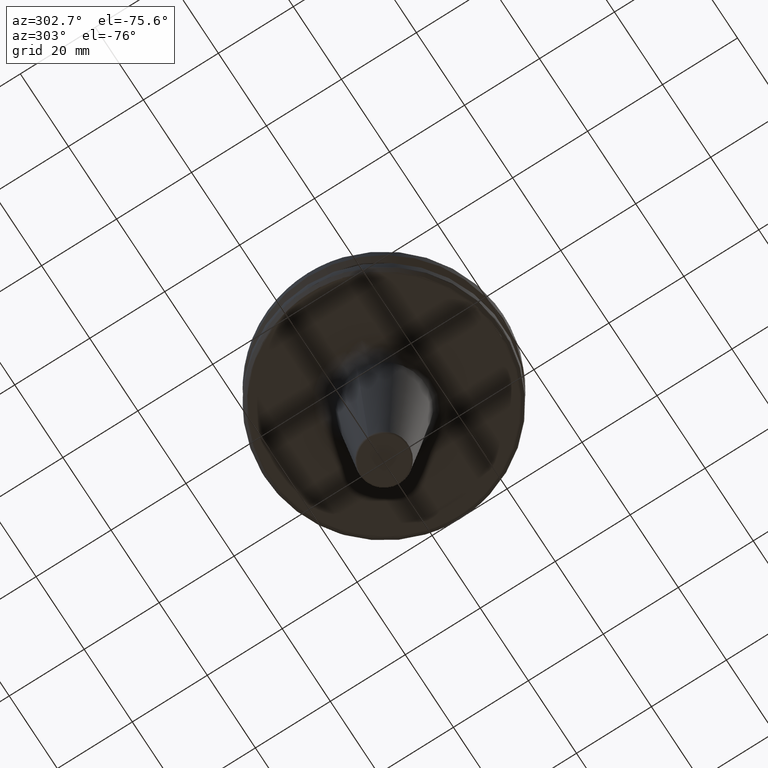
[diagram: clean part render]
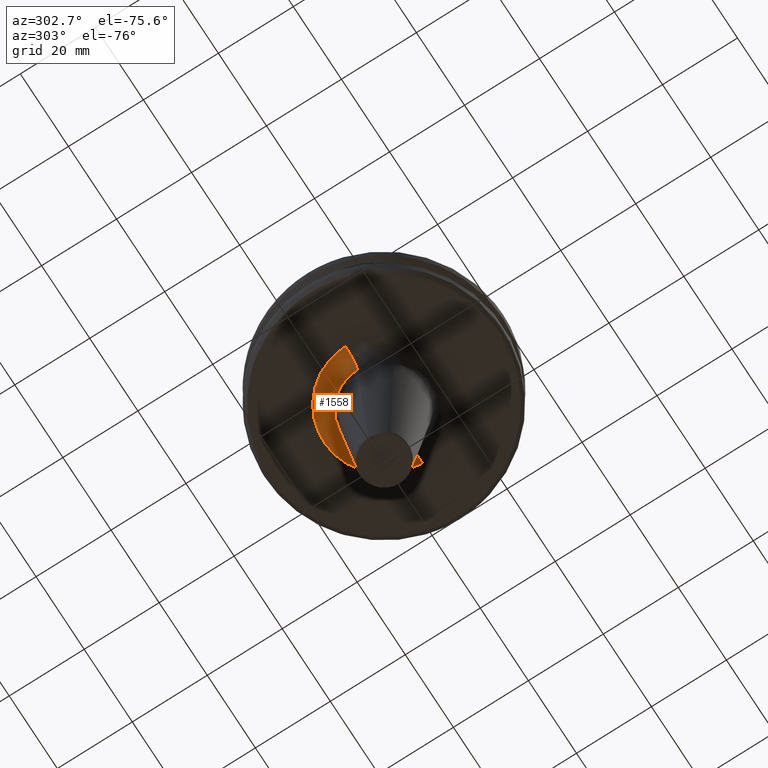
[diagram: same view with one face highlighted and labeled with its STEP entity id]
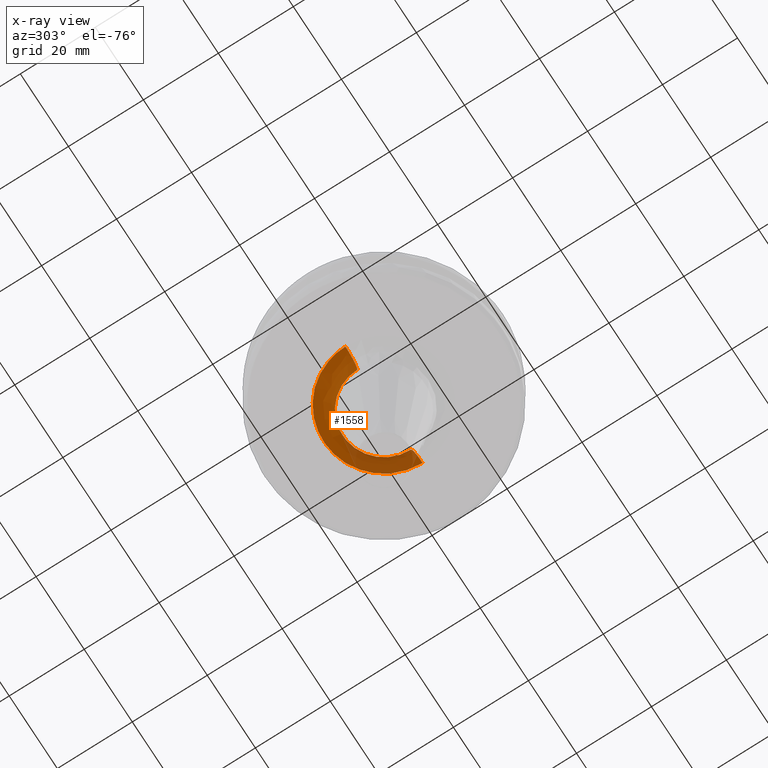
[diagram: x-ray of the same camera — body ghosted, the highlighted face saturated]
A machine part, auxiliary view. The second image highlights one B-rep face of the part: STEP entity #1558.
The next image is the same camera in x-ray: the body ghosted, the highlighted face saturated — about 30% of this face is hidden behind the body in this view.
In plain terms, the highlighted face is a freeform B-spline surface patch.
Its self-contained STEP definition (entity closure, byte-faithful):
#30 = CARTESIAN_POINT ( 'NONE',  ( -14.84947300012846800, 6.024364405954415200, -19.10000000000000500 ) ) ;
#44 = CARTESIAN_POINT ( 'NONE',  ( -13.37576967291299800, 8.825640178401208400, -19.10000000000000500 ) ) ;
#70 = CARTESIAN_POINT ( 'NONE',  ( -14.81123150433130900, 6.118357356655534900, -19.10000000000001200 ) ) ;
#86 = CARTESIAN_POINT ( 'NONE',  ( -14.88784638462720400, 5.928885450392087400, -19.10000000000000900 ) ) ;
#105 = AXIS2_PLACEMENT_3D ( 'NONE', #1554, #1251, #1521 ) ;
#141 = CARTESIAN_POINT ( 'NONE',  ( 0.0000000000000000000, 0.0000000000000000000, -23.60248140489502000 ) ) ;
#172 = CARTESIAN_POINT ( 'NONE',  ( -14.87477819932297900, 5.961603683802923800, -19.10000000000000900 ) ) ;
#183 = CIRCLE ( 'NONE', #1462, 5.000000000000004400 ) ;
#187 = CARTESIAN_POINT ( 'NONE',  ( -15.34169353380840100, 4.680513904855772000, -19.10000000000000100 ) ) ;
#193 = CARTESIAN_POINT ( 'NONE',  ( -12.86360331655530800, 9.563684186069849600, -19.10000000000000500 ) ) ;
#198 = CARTESIAN_POINT ( 'NONE',  ( 16.02493781056044500, 0.0000000000000000000, -19.10000000000000500 ) ) ;
#215 = CARTESIAN_POINT ( 'NONE',  ( -15.09105277167043900, 5.415644888857079800, -19.10000000000000500 ) ) ;
#229 = CARTESIAN_POINT ( 'NONE',  ( -15.66933341055752200, 3.361706707456753900, -19.10000000000000900 ) ) ;
#237 = CARTESIAN_POINT ( 'NONE',  ( -15.57068978087852100, 3.804387961389443800, -19.10000000000000900 ) ) ;
#245 = CARTESIAN_POINT ( 'NONE',  ( -15.73328147892308400, 3.043609017315738200, -19.10000000000000500 ) ) ;
#255 = CARTESIAN_POINT ( 'NONE',  ( 11.04975185951035900, 22.09950371902071000, -23.60248140489638400 ) ) ;
#272 = CARTESIAN_POINT ( 'NONE',  ( -15.71469160193302100, 3.139211509940523100, -19.10000000000001200 ) ) ;
#282 = AXIS2_PLACEMENT_3D ( 'NONE', #141, #522, #1146 ) ;
#286 = CARTESIAN_POINT ( 'NONE',  ( -15.75183382698052600, 2.946059808765332500, -19.10000000000000500 ) ) ;
#302 = CARTESIAN_POINT ( 'NONE',  ( -8.541319097881851600, 13.55910936823180000, -19.10000000000000500 ) ) ;
#327 = CARTESIAN_POINT ( 'NONE',  ( -15.74548598627531100, 2.979819042682552200, -19.10000000000000100 ) ) ;
#348 = CARTESIAN_POINT ( 'NONE',  ( -16.02493781056044500, 0.9803416778389302300, -19.10000000000000100 ) ) ;
#369 = CARTESIAN_POINT ( 'NONE',  ( -13.14302670391787100, 9.170287624489390100, -19.10000000000000900 ) ) ;
#383 = CARTESIAN_POINT ( 'NONE',  ( -15.93576099959556900, 1.952323877413708800, -19.10000000000000100 ) ) ;
#451 = VERTEX_POINT ( 'NONE', #1840 ) ;
#454 = CIRCLE ( 'NONE', #282, 11.04975185951049200 ) ;
#486 = CARTESIAN_POINT ( 'NONE',  ( -16.02493781056044500, 1.962488879623824100E-015, -19.10000000000000500 ) ) ;
#518 = CARTESIAN_POINT ( 'NONE',  ( -13.25967809541076300, 8.999153413804215500, -19.10000000000000500 ) ) ;
#522 = DIRECTION ( 'NONE',  ( -0.0000000000000000000, -0.0000000000000000000, -1.000000000000000000 ) ) ;
#527 = CARTESIAN_POINT ( 'NONE',  ( -13.33675647000484000, 8.884500454615540800, -19.10000000000000100 ) ) ;
#558 = ORIENTED_EDGE ( 'NONE', *, *, #1221, .T. ) ;
#592 = ORIENTED_EDGE ( 'NONE', *, *, #1128, .F. ) ;
#601 = VERTEX_POINT ( 'NONE', #2415 ) ;
#605 = VERTEX_POINT ( 'NONE', #1674 ) ;
#627 = CARTESIAN_POINT ( 'NONE',  ( 16.02493781056044900, 0.4899930686809289600, -19.10000000000001200 ) ) ;
#645 = CIRCLE ( 'NONE', #105, 5.000000000000004400 ) ;
#766 = CARTESIAN_POINT ( 'NONE',  ( -14.52963988048684400, 6.769049517783882300, -19.10000000000000100 ) ) ;
#773 = CARTESIAN_POINT ( 'NONE',  ( -11.72236206045891500, 10.94034860501287600, -19.10000000000000100 ) ) ;
#781 = ORIENTED_EDGE ( 'NONE', *, *, #1383, .F. ) ;
#787 = CARTESIAN_POINT ( 'NONE',  ( -14.72001546843348400, 6.336637313942035600, -19.10000000000000100 ) ) ;
#793 = CARTESIAN_POINT ( 'NONE',  ( -8.655453287276703400, 13.48652447456426100, -19.10000000000000100 ) ) ;
#816 = CARTESIAN_POINT ( 'NONE',  ( -9.694684175490666100, 12.80765392141866400, -19.09999999999999800 ) ) ;
#827 = CARTESIAN_POINT ( 'NONE',  ( -10.54930246090214900, 12.11332937179425600, -19.10000000000000500 ) ) ;
#841 = CARTESIAN_POINT ( 'NONE',  ( -13.70905175167021600, 8.315898978751576500, -19.10000000000000900 ) ) ;
#1088 = DIRECTION ( 'NONE',  ( 0.0000000000000000000, 1.000000000000000000, 0.0000000000000000000 ) ) ;
#1103 = CARTESIAN_POINT ( 'NONE',  ( 16.02493781056044500, 0.0000000000000000000, -24.10000000000000900 ) ) ;
#1126 = CARTESIAN_POINT ( 'NONE',  ( 15.76331481746329500, 2.884017650570966500, -19.10000000000000900 ) ) ;
#1128 = EDGE_CURVE ( 'NONE', #601, #605, #454, .T. ) ;
#1146 = DIRECTION ( 'NONE',  ( 1.000000000000000000, 0.0000000000000000000, 0.0000000000000000000 ) ) ;
#1221 = EDGE_CURVE ( 'NONE', #601, #451, #645, .T. ) ;
#1241 = CARTESIAN_POINT ( 'NONE',  ( 16.02493781056044500, 0.0000000000000000000, -19.10000000000000500 ) ) ;
#1251 = DIRECTION ( 'NONE',  ( -1.224646799147353200E-016, -1.000000000000000000, 0.0000000000000000000 ) ) ;
#1383 = EDGE_CURVE ( 'NONE', #605, #2524, #183, .T. ) ;
#1462 = AXIS2_PLACEMENT_3D ( 'NONE', #1103, #1088, #1870 ) ;
#1521 = DIRECTION ( 'NONE',  ( -1.000000000000000000, 1.224646799147353500E-016, 0.0000000000000000000 ) ) ;
#1522 = CARTESIAN_POINT ( 'NONE',  ( 15.76846739230699000, 2.855690141017142000, -19.10000000000000100 ) ) ;
#1539 = CARTESIAN_POINT ( 'NONE',  ( 15.48479810381786900, 4.182800675819801300, -19.10000000000000500 ) ) ;
#1554 = CARTESIAN_POINT ( 'NONE',  ( -16.02493781056044500, 1.962488879623824100E-015, -24.10000000000000900 ) ) ;
#1558 = ADVANCED_FACE ( 'NONE', ( #2531 ), #2814, .F. ) ;
#1561 = CARTESIAN_POINT ( 'NONE',  ( -14.11711463998939900, 7.617283082543020900, -19.09999999999999800 ) ) ;
#1633 = CARTESIAN_POINT ( 'NONE',  ( 15.99149650644862000, 1.221981195032172600, -19.10000000000000900 ) ) ;
#1655 = CARTESIAN_POINT ( 'NONE',  ( -11.31866075088535200, 22.63732150177070700, -20.91339249113892500 ) ) ;
#1664 = CARTESIAN_POINT ( 'NONE',  ( 11.31866075088535500, 22.63732150177070700, -20.91339249113892500 ) ) ;
#1666 = CARTESIAN_POINT ( 'NONE',  ( 11.31866075088535500, 0.0000000000000000000, -20.91339249113892200 ) ) ;
#1667 = CARTESIAN_POINT ( 'NONE',  ( 15.89395936945579100, 2.070714758269191600, -19.09999999999999800 ) ) ;
#1668 = CARTESIAN_POINT ( 'NONE',  ( 16.02493781056044500, 0.0000000000000000000, -19.10000000000000500 ) ) ;
#1670 = CARTESIAN_POINT ( 'NONE',  ( -13.32243689882075800, 1.631527970498343200E-015, -19.10000000000000500 ) ) ;
#1673 = EDGE_LOOP ( 'NONE', ( #592, #558, #2881, #781 ) ) ;
#1674 = CARTESIAN_POINT ( 'NONE',  ( 11.04975185949665200, 0.0000000000000000000, -23.60248140489502000 ) ) ;
#1675 = CARTESIAN_POINT ( 'NONE',  ( -13.32243689882075300, 26.64487379764150500, -19.10000000000000500 ) ) ;
#1694 = CARTESIAN_POINT ( 'NONE',  ( 15.83056023041045900, 2.493768393844510100, -19.10000000000000500 ) ) ;
#1703 = CARTESIAN_POINT ( 'NONE',  ( 15.79520301825054700, 2.704966925121372200, -19.10000000000000100 ) ) ;
#1718 = CARTESIAN_POINT ( 'NONE',  ( 15.77926614675976100, 2.795410234273428600, -19.10000000000000100 ) ) ;
#1723 = CARTESIAN_POINT ( 'NONE',  ( 15.21348071713567800, 5.046758331079652200, -19.10000000000000500 ) ) ;
#1730 = CARTESIAN_POINT ( 'NONE',  ( 15.66288834090655000, 3.426809769178834800, -19.10000000000000500 ) ) ;
#1734 = CARTESIAN_POINT ( 'NONE',  ( 14.94716444030970100, 5.777714104504474900, -19.10000000000000500 ) ) ;
#1738 = EDGE_CURVE ( 'NONE', #2524, #451, #2316, .T. ) ;
#1740 = CARTESIAN_POINT ( 'NONE',  ( 15.06193566294154700, 5.474229224754259000, -19.09999999999999800 ) ) ;
#1751 = CARTESIAN_POINT ( 'NONE',  ( 14.98219154563124700, 5.686837688102733600, -19.10000000000000500 ) ) ;
#1762 = CARTESIAN_POINT ( 'NONE',  ( 14.70054539880542400, 6.402048334116569700, -19.10000000000000100 ) ) ;
#1769 = CARTESIAN_POINT ( 'NONE',  ( 14.92362391341851700, 5.838244716225212900, -19.10000000000000500 ) ) ;
#1779 = CARTESIAN_POINT ( 'NONE',  ( 14.91225309543127200, 5.867235235063370500, -19.10000000000000900 ) ) ;
#1786 = CARTESIAN_POINT ( 'NONE',  ( 13.91026865560330500, 7.964600987713567700, -19.10000000000000900 ) ) ;
#1812 = CARTESIAN_POINT ( 'NONE',  ( 13.66684814283127000, 8.369532604454123600, -19.10000000000000100 ) ) ;
#1819 = CARTESIAN_POINT ( 'NONE',  ( 14.36522983596104200, 7.138351892635469700, -19.10000000000000500 ) ) ;
#1825 = CARTESIAN_POINT ( 'NONE',  ( 13.55910936823043600, 8.541319097886118400, -19.10000000000000500 ) ) ;
#1840 = CARTESIAN_POINT ( 'NONE',  ( -16.02493781056044500, 1.962488879623824100E-015, -19.10000000000000500 ) ) ;
#1870 = DIRECTION ( 'NONE',  ( 1.000000000000000000, 0.0000000000000000000, 0.0000000000000000000 ) ) ;
#1878 = CARTESIAN_POINT ( 'NONE',  ( -16.02493781056044500, 1.962488879623824100E-015, -19.10000000000000500 ) ) ;
#1885 = CARTESIAN_POINT ( 'NONE',  ( -16.02493781056044100, 32.04987562112088300, -19.10000000000000900 ) ) ;
#1886 = CARTESIAN_POINT ( 'NONE',  ( 16.02493781056044100, 32.04987562112088300, -19.10000000000000900 ) ) ;
#1889 = CARTESIAN_POINT ( 'NONE',  ( 13.48652447456353600, 8.655453287278941600, -19.10000000000000500 ) ) ;
#1921 = CARTESIAN_POINT ( 'NONE',  ( 13.45062270834713700, 8.711147148067460900, -19.10000000000000500 ) ) ;
#1931 = CARTESIAN_POINT ( 'NONE',  ( 12.80765392139711500, 9.694684175514000300, -19.10000000000000100 ) ) ;
#1947 = CARTESIAN_POINT ( 'NONE',  ( 12.11332937178798400, 10.54930246091020000, -19.10000000000000500 ) ) ;
#1954 = CARTESIAN_POINT ( 'NONE',  ( 10.94034860501600700, 11.72236206045489500, -19.10000000000000100 ) ) ;
#1958 = CARTESIAN_POINT ( 'NONE',  ( 10.32681092249664300, 12.27580931297320900, -19.10000000000000500 ) ) ;
#1964 = CARTESIAN_POINT ( 'NONE',  ( 9.563684186073969000, 12.86360331655002100, -19.10000000000000500 ) ) ;
#1968 = CARTESIAN_POINT ( 'NONE',  ( 9.170287624491784600, 13.14302670391479400, -19.10000000000000900 ) ) ;
#1975 = CARTESIAN_POINT ( 'NONE',  ( 8.999153413805666800, 13.25967809540891000, -19.10000000000000900 ) ) ;
#1980 = CARTESIAN_POINT ( 'NONE',  ( 8.884500454616301100, 13.33675647000386800, -19.10000000000000900 ) ) ;
#1983 = CARTESIAN_POINT ( 'NONE',  ( 8.825640178400670200, 13.37576967291310300, -19.10000000000000100 ) ) ;
#1992 = CARTESIAN_POINT ( 'NONE',  ( 8.315898978755877000, 13.70905175166934100, -19.10000000000000900 ) ) ;
#2003 = CARTESIAN_POINT ( 'NONE',  ( 7.617283082550542900, 14.11711463998785900, -19.10000000000000500 ) ) ;
#2019 = CARTESIAN_POINT ( 'NONE',  ( 6.769049517789534700, 14.52963988048568700, -19.10000000000000900 ) ) ;
#2038 = CARTESIAN_POINT ( 'NONE',  ( 6.336637313945326300, 14.72001546843282100, -19.10000000000000500 ) ) ;
#2049 = CARTESIAN_POINT ( 'NONE',  ( 6.118357356657301500, 14.81123150433093900, -19.10000000000000500 ) ) ;
#2057 = CARTESIAN_POINT ( 'NONE',  ( 6.024364405955444600, 14.84947300012825300, -19.10000000000000100 ) ) ;
#2068 = CARTESIAN_POINT ( 'NONE',  ( 5.961603683803454100, 14.87477819932287400, -19.10000000000000500 ) ) ;
#2115 = CARTESIAN_POINT ( 'NONE',  ( 11.04975185951035700, 0.0000000000000000000, -23.60248140489638400 ) ) ;
#2137 = CARTESIAN_POINT ( 'NONE',  ( 5.928885450392551000, 14.88784638462707100, -19.10000000000000500 ) ) ;
#2148 = CARTESIAN_POINT ( 'NONE',  ( 5.415644888849651100, 15.09105277167259000, -19.10000000000001200 ) ) ;
#2162 = CARTESIAN_POINT ( 'NONE',  ( 4.680513904842776200, 15.34169353381216900, -19.10000000000000500 ) ) ;
#2176 = CARTESIAN_POINT ( 'NONE',  ( 3.804387961379704000, 15.57068978088133600, -19.10000000000000100 ) ) ;
#2179 = CARTESIAN_POINT ( 'NONE',  ( 3.361706707451069100, 15.66933341055917100, -19.10000000000000900 ) ) ;
#2193 = CARTESIAN_POINT ( 'NONE',  ( 3.139211509937478400, 15.71469160193389500, -19.10000000000000100 ) ) ;
#2213 = CARTESIAN_POINT ( 'NONE',  ( 3.043609017313951200, 15.73328147892359400, -19.09999999999999800 ) ) ;
#2238 = CARTESIAN_POINT ( 'NONE',  ( 2.979819042681635600, 15.74548598627557900, -19.10000000000000500 ) ) ;
#2247 = CARTESIAN_POINT ( 'NONE',  ( -1.221827842345439000, 15.99152487950427200, -19.10000000000000500 ) ) ;
#2255 = CARTESIAN_POINT ( 'NONE',  ( 2.946054329957991300, 15.75183484103421300, -19.10000000000000100 ) ) ;
#2267 = CARTESIAN_POINT ( 'NONE',  ( 1.952499199248498800, 15.93572854987749000, -19.10000000000000900 ) ) ;
#2271 = CARTESIAN_POINT ( 'NONE',  ( 13.32243689882075800, 26.64487379764150500, -19.10000000000000500 ) ) ;
#2278 = CARTESIAN_POINT ( 'NONE',  ( -0.4899054385742226400, 16.02495402373510600, -19.10000000000001200 ) ) ;
#2299 = CARTESIAN_POINT ( 'NONE',  ( -2.704930983085418500, 15.79520966818547300, -19.10000000000000500 ) ) ;
#2316 = B_SPLINE_CURVE_WITH_KNOTS ( 'NONE', 3,
 ( #198, #627, #1633, #1667, #1694, #1703, #1718, #1522, #1126, #1730, #1539, #1723, #1740, #1751, #1734, #1769, #1779, #1762, #1819, #1786, #1812, #1825, #1889, #1921, #1931, #1947, #1954, #1958, #1964, #1968, #1975, #1980, #1983, #1992, #2003, #2019, #2038, #2049, #2057, #2068, #2137, #2148, #2162, #2176, #2179, #2193, #2213, #2238, #2255, #2267, #2335, #2278, #2247, #2353, #2341, #2299, #2347, #2364, #2368, #2360, #2372, #2377, #2383, #2392, #2667, #2596, #2748, #2635, #2611, #2563, #2465, #302, #793, #2534, #816, #827, #773, #2728, #193, #369, #518, #527, #44, #841, #1561, #766, #787, #70, #30, #172, #86, #215, #187, #237, #229, #272, #245, #327, #286, #383, #348, #486 ),
 .UNSPECIFIED., .F., .F.,
 ( 4, 1, 1, 1, 1, 2, 2, 1, 1, 1, 1, 2, 2, 1, 1, 1, 2, 2, 2, 1, 1, 1, 2, 2, 1, 1, 1, 1, 2, 2, 1, 1, 1, 1, 2, 2, 2, 1, 1, 1, 1, 2, 2, 1, 1, 1, 1, 2, 2, 1, 1, 1, 2, 2, 2, 1, 1, 1, 2, 2, 1, 1, 1, 1, 2, 2, 1, 1, 1, 1, 2, 2, 4 ),
 ( 0.0000000000000000000, 0.03125000000000144300, 0.04687500000000217900, 0.05468750000000254700, 0.05859375000000271300, 0.06054687500000279600, 0.06250000000000287300, 0.09375000000000377500, 0.1093750000000042300, 0.1171875000000044400, 0.1210937500000045400, 0.1230468750000045700, 0.1250000000000046100, 0.1562500000000050000, 0.1718750000000051600, 0.1796875000000052700, 0.1835937500000053300, 0.1875000000000054100, 0.2500000000000065500, 0.2812500000000071600, 0.2968750000000074400, 0.3046875000000075500, 0.3085937500000076600, 0.3125000000000077200, 0.3437500000000077700, 0.3593750000000078300, 0.3671875000000078300, 0.3710937500000078800, 0.3730468750000078300, 0.3750000000000078300, 0.4062500000000077200, 0.4218750000000077200, 0.4296875000000076600, 0.4335937500000076600, 0.4355468750000076100, 0.4375000000000076100, 0.5000000000000074400, 0.5312500000000073300, 0.5468750000000072200, 0.5546875000000073300, 0.5585937500000072200, 0.5605468750000072200, 0.5625000000000072200, 0.5937500000000062200, 0.6093750000000057700, 0.6171875000000056600, 0.6210937500000055500, 0.6230468750000055500, 0.6250000000000055500, 0.6562500000000053300, 0.6718750000000051100, 0.6796875000000051100, 0.6835937500000050000, 0.6875000000000050000, 0.7500000000000042200, 0.7812500000000037700, 0.7968750000000035500, 0.8046875000000036600, 0.8085937500000035500, 0.8125000000000035500, 0.8437500000000032200, 0.8593750000000030000, 0.8671875000000030000, 0.8710937500000028900, 0.8730468750000028900, 0.8750000000000028900, 0.9062500000000022200, 0.9218750000000017800, 0.9296875000000016700, 0.9335937500000014400, 0.9355468750000014400, 0.9375000000000014400, 1.000000000000000000 ),
 .UNSPECIFIED. ) ;
#2335 = CARTESIAN_POINT ( 'NONE',  ( 0.9798108771484382900, 16.02490538421113100, -19.10000000000000900 ) ) ;
#2341 = CARTESIAN_POINT ( 'NONE',  ( -2.493701302044061500, 15.83057264362230200, -19.10000000000000100 ) ) ;
#2347 = CARTESIAN_POINT ( 'NONE',  ( -2.795389182509513000, 15.77927004172165600, -19.10000000000000900 ) ) ;
#2353 = CARTESIAN_POINT ( 'NONE',  ( -2.070599743754145000, 15.89398064924753000, -19.10000000000000500 ) ) ;
#2360 = CARTESIAN_POINT ( 'NONE',  ( -3.426809769187263200, 15.66288834090389200, -19.10000000000000900 ) ) ;
#2364 = CARTESIAN_POINT ( 'NONE',  ( -2.855679358406354200, 15.76846938728745900, -19.10000000000000500 ) ) ;
#2368 = CARTESIAN_POINT ( 'NONE',  ( -2.884017650570437600, 15.76331481746345800, -19.10000000000000500 ) ) ;
#2372 = CARTESIAN_POINT ( 'NONE',  ( -4.182800675834552200, 15.48479810381320500, -19.10000000000000500 ) ) ;
#2377 = CARTESIAN_POINT ( 'NONE',  ( -5.046758331090716300, 15.21348071713217500, -19.10000000000000100 ) ) ;
#2383 = CARTESIAN_POINT ( 'NONE',  ( -5.474229224760713400, 15.06193566293952000, -19.10000000000000100 ) ) ;
#2387 = CARTESIAN_POINT ( 'NONE',  ( -11.04975185951035700, 1.353204324612187300E-015, -23.60248140489638400 ) ) ;
#2392 = CARTESIAN_POINT ( 'NONE',  ( -5.686837688106193900, 14.98219154563016400, -19.10000000000000500 ) ) ;
#2394 = CARTESIAN_POINT ( 'NONE',  ( 13.32243689882075800, 0.0000000000000000000, -19.10000000000000500 ) ) ;
#2403 = CARTESIAN_POINT ( 'NONE',  ( -11.04975185951035300, 22.09950371902071000, -23.60248140489638400 ) ) ;
#2415 = CARTESIAN_POINT ( 'NONE',  ( -11.04975185949665200, 1.353204324610509000E-015, -23.60248140489502000 ) ) ;
#2425 = CARTESIAN_POINT ( 'NONE',  ( -11.31866075088535500, 1.386136165920652900E-015, -20.91339249113892200 ) ) ;
#2465 = CARTESIAN_POINT ( 'NONE',  ( -8.369532604447039500, 13.66684814283353900, -19.10000000000000500 ) ) ;
#2524 = VERTEX_POINT ( 'NONE', #1241 ) ;
#2531 = FACE_OUTER_BOUND ( 'NONE', #1673, .T. ) ;
#2534 = CARTESIAN_POINT ( 'NONE',  ( -8.711147148068919300, 13.45062270834579200, -19.10000000000000500 ) ) ;
#2563 = CARTESIAN_POINT ( 'NONE',  ( -7.964600987701431700, 13.91026865560718500, -19.10000000000000500 ) ) ;
#2596 = CARTESIAN_POINT ( 'NONE',  ( -5.838244716226248500, 14.92362391341818700, -19.10000000000000900 ) ) ;
#2611 = CARTESIAN_POINT ( 'NONE',  ( -7.138351892619287000, 14.36522983596622000, -19.10000000000000500 ) ) ;
#2635 = CARTESIAN_POINT ( 'NONE',  ( -6.402048334107323800, 14.70054539880838400, -19.10000000000000500 ) ) ;
#2667 = CARTESIAN_POINT ( 'NONE',  ( -5.777714104506498100, 14.94716444030906300, -19.10000000000000500 ) ) ;
#2728 = CARTESIAN_POINT ( 'NONE',  ( -12.27580931298025000, 10.32681092249116100, -19.10000000000000500 ) ) ;
#2748 = CARTESIAN_POINT ( 'NONE',  ( -5.867235235063945200, 14.91225309543108100, -19.10000000000000500 ) ) ;
#2814 =( BOUNDED_SURFACE ( )  B_SPLINE_SURFACE ( 3, 3, ( 
 ( #2115, #255, #2403, #2387 ),
 ( #1666, #1664, #1655, #2425 ),
 ( #2394, #2271, #1675, #1670 ),
 ( #1668, #1886, #1885, #1878 ) ),
 .UNSPECIFIED., .F., .F., .F. ) 
 B_SPLINE_SURFACE_WITH_KNOTS ( ( 4, 4 ),
 ( 4, 4 ),
 ( 0.0000000000000000000, 1.000000000000000000 ),
 ( 0.0000000000000000000, 1.000000000000000000 ),
 .UNSPECIFIED. ) 
 GEOMETRIC_REPRESENTATION_ITEM ( )  RATIONAL_B_SPLINE_SURFACE ( (
 ( 1.000000000000000000, 0.3333333333333334300, 0.3333333333333334300, 1.000000000000000000),
 ( 0.8276350223678573500, 0.2758783407892858600, 0.2758783407892858600, 0.8276350223678573500),
 ( 0.8276350223678573500, 0.2758783407892858600, 0.2758783407892858600, 0.8276350223678573500),
 ( 1.000000000000000000, 0.3333333333333334300, 0.3333333333333334300, 1.000000000000000000) ) ) 
 REPRESENTATION_ITEM ( '' )  SURFACE ( )  );
#2881 = ORIENTED_EDGE ( 'NONE', *, *, #1738, .F. ) ;